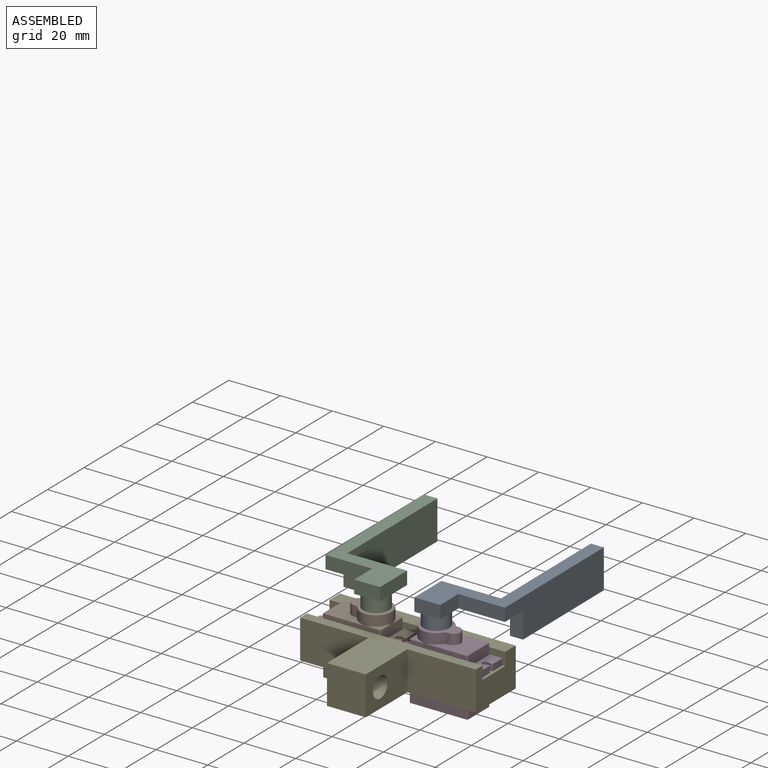
[diagram: assembled view]
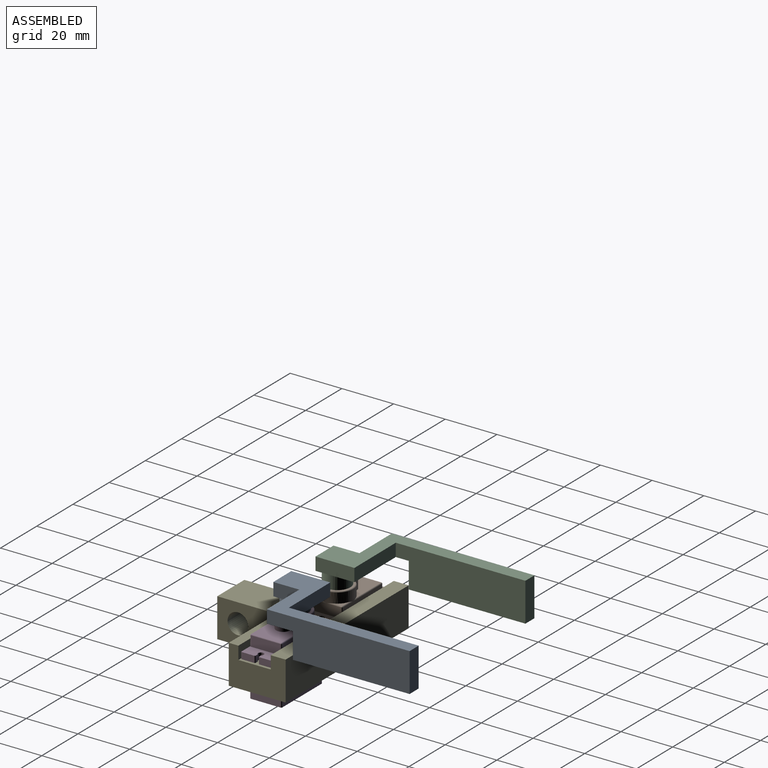
[diagram: assembled view, second angle]
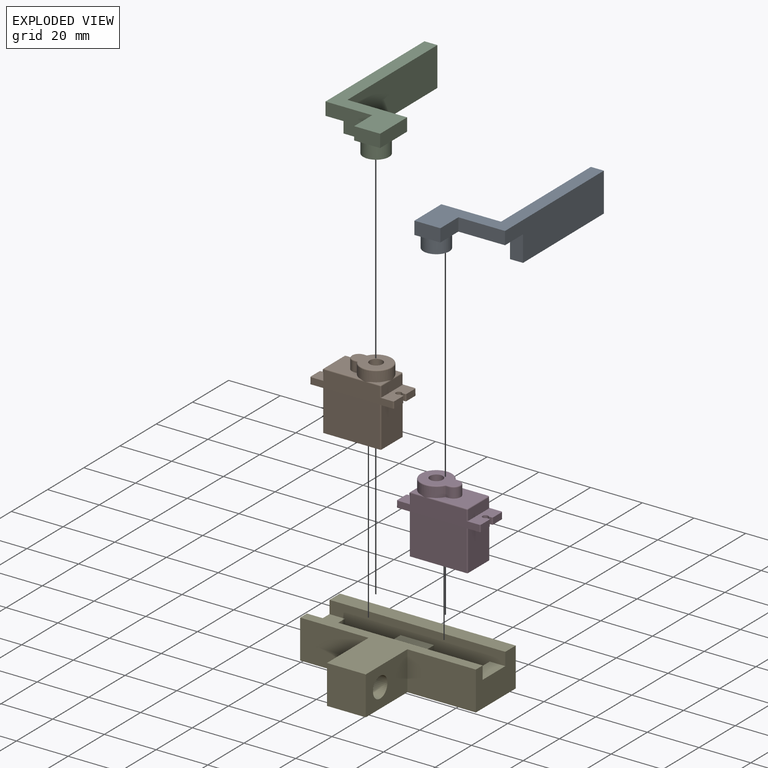
[diagram: exploded view]
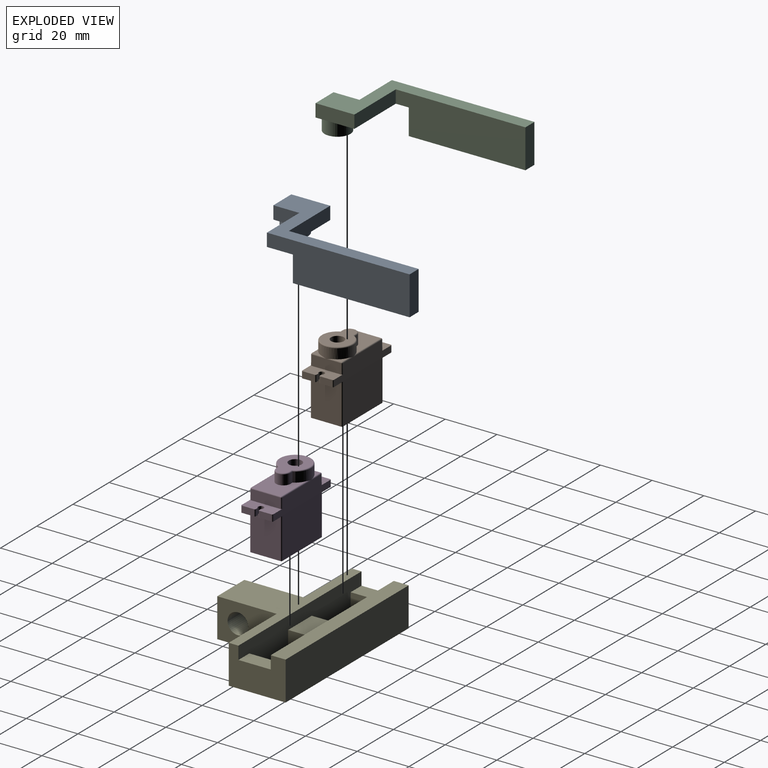
[diagram: exploded view, second angle]
ASSEMBLY  parts=5 mates=10
PART A: 18 faces, bbox 28x65x15 mm
  f0: plane 28x15mm, normal (0,0,-1), area 175.7mm2, adj f2,f3,f5,f6,f7,f9,f13,f16
  f1: plane 5x5mm, normal (0,0,-1), area 5.4mm2, adj f8,f9,f13
  f2: plane 18x5mm, normal (0,-1,0), area 90mm2, adj f0,f3,f9,f10
  f3: plane 55x15mm, normal (1,0,0), area 725mm2, adj f0,f2,f4,f10,f16,f17
  f4: plane 15x5mm, normal (0,1,0), area 75mm2, adj f3,f5,f10,f17
  f5: plane 50x15mm, normal (-1,0,0), area 700mm2, adj f0,f4,f6,f10,f16,f17
  f6: plane 23x5mm, normal (0,1,0), area 115mm2, adj f0,f5,f7,f10
  f7: plane 15x5mm, normal (-1,0,0), area 75mm2, adj f0,f6,f8,f10,f11
  f8: plane 10x5mm, normal (0,-1,0), area 50mm2, adj f1,f7,f9,f10,f11
  f9: plane 10x5mm, normal (1,0,0), area 50mm2, adj f0,f1,f2,f8,f10
  f10: plane 65x28mm, normal (0,0,1), area 490mm2, adj f2,f3,f4,f5,f6,f7,f8,f9
  f11: plane 5x5mm, normal (0,0,-1), area 5.4mm2, adj f7,f8,f13
  f12: cylinder r=4mm len=8mm, axis (0,0,1), area 125.7mm2, adj f14,f15
  f13: cylinder r=5mm len=10mm, axis (0,0,1), area 157.1mm2, adj f0,f1,f11,f14
  f14: plane 10x10mm, normal (0,0,-1), area 28.3mm2, adj f12,f13
  f15: plane 8x8mm, normal (0,0,-1), area 50.3mm2, adj f12
  f16: plane 10x5mm, normal (0,-1,0), area 50mm2, adj f0,f3,f5,f17
  f17: plane 45x5mm, normal (0,0,-1), area 225mm2, adj f3,f4,f5,f16
PART B: 64 faces, bbox 13.2x32.4x26.7 mm
  f0: plane 3.52x3.52mm, normal (0,0,1), area 4.4mm2, adj f4,f7,f57
  f1: plane 3.52x3.52mm, normal (0,0,1), area 4.4mm2, adj f5,f8,f57
  f2: plane 13.72x11.39mm, normal (0,0,1), area 107.7mm2, adj f3,f6,f47,f53,f54,f57,f58
  f3: cylinder r=0.4mm len=15.89mm, axis (0,1,0), area 9.3mm2, adj f2,f17,f45,f57
  f4: cylinder r=0.4mm len=5.69mm, axis (0,1,0), area 2.9mm2, adj f0,f17,f50,f57
  f5: cylinder r=0.4mm len=5.69mm, axis (0,1,0), area 2.9mm2, adj f1,f15,f51,f57
  f6: cylinder r=0.4mm len=15.89mm, axis (0,1,0), area 9.3mm2, adj f2,f15,f49,f57
  f7: cylinder r=0.4mm len=5.69mm, axis (-1,0,0), area 2.9mm2, adj f0,f16,f50,f57
  f8: cylinder r=0.4mm len=5.69mm, axis (-1,0,0), area 2.9mm2, adj f1,f16,f51,f57
  f9: plane 4.73x2.5mm, normal (0,1,0.01), area 11.8mm2, adj f11,f12,f32,f36
  f10: plane 4.73x2.5mm, normal (0,1,0.01), area 11.8mm2, adj f11,f12,f33,f37
  f11: plane 12.3x5.35mm, normal (0,0,-1), area 55.4mm2, adj f9,f10,f15,f17,f22,f29,f30,f31
  f12: plane 12.26x5.35mm, normal (0,0,1), area 55.2mm2, adj f9,f10,f15,f16,f17,f29,f30,f31
  f13: plane 4.73x2.5mm, normal (0,-1,0.01), area 11.8mm2, adj f14,f25,f34,f38
  f14: plane 12.26x5.35mm, normal (0,0,1), area 55.2mm2, adj f13,f15,f17,f18,f24,f26,f27,f28
  f15: plane 31.6x6.4mm, normal (1,0,0.01), area 163.4mm2, adj f5,f6,f11,f12,f14,f23,f25,f36
  f16: plane 11.46x3.9mm, normal (0,1,0.01), area 44.6mm2, adj f7,f8,f12,f48,f52
  f17: plane 31.6x6.4mm, normal (-1,0,0.01), area 163.4mm2, adj f3,f4,f11,f12,f14,f21,f25,f37
  f18: plane 11.46x3.9mm, normal (0,-1,0.01), area 44.6mm2, adj f14,f44,f46,f47
  f19: plane 22.5x12.3mm, normal (0,0,-1), area 276.6mm2, adj f20,f21,f22,f23,f40,f41,f42,f43
  f20: plane 15.7x11.5mm, normal (0,-1,0), area 180.5mm2, adj f19,f25,f42,f43
  f21: plane 21.7x15.7mm, normal (-1,0,0), area 340.7mm2, adj f17,f19,f41,f42
  f22: plane 15.7x11.5mm, normal (0,1,0), area 180.5mm2, adj f11,f19,f40,f41
  f23: plane 21.7x15.7mm, normal (1,0,0), area 340.7mm2, adj f15,f19,f40,f43
  f24: plane 4.73x2.5mm, normal (0,-1,0.01), area 11.8mm2, adj f14,f25,f35,f39
  f25: plane 12.3x5.35mm, normal (0,0,-1), area 55.4mm2, adj f13,f15,f17,f20,f24,f26,f27,f28
  f26: cylinder r=1.1mm len=2.5mm, axis (0,0,1), area 14mm2, adj f14,f25,f27,f28
  f27: plane 2.5x1.04mm, normal (1,0,0), area 2.6mm2, adj f14,f25,f26,f34
  f28: plane 2.5x1.04mm, normal (-1,0,0), area 2.6mm2, adj f14,f25,f26,f35
  f29: plane 2.5x1.04mm, normal (-1,0,0), area 2.6mm2, adj f11,f12,f31,f32
  f30: plane 2.5x1.04mm, normal (1,0,0), area 2.6mm2, adj f11,f12,f31,f33
  f31: cylinder r=1.1mm len=2.5mm, axis (0,0,1), area 14mm2, adj f11,f12,f29,f30
  f32: cylinder r=0.4mm len=2.51mm, axis (0,0.01,-1), area 1.6mm2, adj f9,f11,f12,f29
  f33: cylinder r=0.4mm len=2.51mm, axis (0,-0.01,1), area 1.6mm2, adj f10,f11,f12,f30
  f34: cylinder r=0.4mm len=2.51mm, axis (0,0.01,1), area 1.6mm2, adj f13,f14,f25,f27
  f35: cylinder r=0.4mm len=2.51mm, axis (0,-0.01,-1), area 1.6mm2, adj f14,f24,f25,f28
  f36: cylinder r=0.4mm len=2.5mm, axis (0.01,0.01,-1), area 1.6mm2, adj f9,f11,f12,f15
  f37: cylinder r=0.4mm len=2.5mm, axis (-0.01,0.01,-1), area 1.6mm2, adj f10,f11,f12,f17
  f38: cylinder r=0.4mm len=2.5mm, axis (-0.01,-0.01,-1), area 1.6mm2, adj f13,f14,f17,f25
  f39: cylinder r=0.4mm len=2.5mm, axis (0.01,-0.01,-1), area 1.6mm2, adj f14,f15,f24,f25
  f40: cylinder r=0.4mm len=15.7mm, axis (0,0,-1), area 9.9mm2, adj f11,f19,f22,f23
  f41: cylinder r=0.4mm len=15.7mm, axis (0,0,1), area 9.9mm2, adj f11,f19,f21,f22
  f42: cylinder r=0.4mm len=15.7mm, axis (0,0,-1), area 9.9mm2, adj f19,f20,f21,f25
  f43: cylinder r=0.4mm len=15.7mm, axis (0,0,1), area 9.9mm2, adj f19,f20,f23,f25
  f44: cylinder r=0.4mm len=3.91mm, axis (-0.01,-0.01,-1), area 2.5mm2, adj f14,f17,f18,f45
  f45: sphere r=0.4mm, area 0.2mm2, adj f3,f44,f47
  f46: cylinder r=0.4mm len=3.91mm, axis (0.01,-0.01,-1), area 2.5mm2, adj f14,f15,f18,f49
  f47: cylinder r=0.4mm len=11.39mm, axis (-1,0,0), area 7.1mm2, adj f2,f18,f45,f49
  f48: cylinder r=0.4mm len=3.91mm, axis (-0.01,0.01,-1), area 2.5mm2, adj f12,f16,f17,f50
  f49: sphere r=0.4mm, area 0.2mm2, adj f6,f46,f47
  f50: sphere r=0.4mm, area 0.2mm2, adj f4,f7,f48
  f51: sphere r=0.4mm, area 0.2mm2, adj f5,f8,f52
  f52: cylinder r=0.4mm len=3.91mm, axis (0.01,0.01,-1), area 2.5mm2, adj f12,f15,f16,f51
  f53: plane 3.8x1.22mm, normal (-1,0,0), area 4.6mm2, adj f2,f54,f57,f61
  f54: cylinder r=2.75mm len=5.5mm, axis (0,0,-1), area 32.8mm2, adj f2,f53,f58,f63
  f55: plane 14.7x11.39mm, normal (0,0,1), area 96.2mm2, adj f56,f60,f61,f62,f63
  f56: cylinder r=2.5mm len=5mm, axis (0,0,-1), area 66mm2, adj f55,f59
  f57: cylinder r=6.09mm len=12.19mm, axis (0,0,-1), area 125.9mm2, adj f0,f1,f2,f3,f4,f5,f6,f7
  f58: plane 3.8x1.22mm, normal (1,0,0), area 4.6mm2, adj f2,f54,f57,f62
  f59: plane 5x5mm, normal (0,0,1), area 19.6mm2, adj f56
  f60: torus R=5.69mm, axis (0,0,1), area 20.1mm2, adj f55,f57,f61,f62
  f61: cylinder r=0.4mm len=1.47mm, axis (0,1,0), area 0.8mm2, adj f53,f55,f60,f63
  f62: cylinder r=0.4mm len=1.47mm, axis (0,-1,0), area 0.8mm2, adj f55,f58,f60,f63
  f63: torus R=2.35mm, axis (0,0,1), area 5.1mm2, adj f54,f55,f61,f62
PART C: 18 faces, bbox 28x65x15 mm
  f0: plane 28x15mm, normal (0,0,-1), area 175.7mm2, adj f2,f3,f4,f6,f7,f8,f13,f16
  f1: plane 5x5mm, normal (0,0,-1), area 5.4mm2, adj f5,f6,f13
  f2: plane 55x15mm, normal (-1,0,0), area 725mm2, adj f0,f3,f9,f10,f16,f17
  f3: plane 18x5mm, normal (0,-1,0), area 90mm2, adj f0,f2,f4,f10
  f4: plane 10x5mm, normal (-1,0,0), area 50mm2, adj f0,f3,f5,f10,f11
  f5: plane 10x5mm, normal (0,-1,0), area 50mm2, adj f1,f4,f6,f10,f11
  f6: plane 15x5mm, normal (1,0,0), area 75mm2, adj f0,f1,f5,f7,f10
  f7: plane 23x5mm, normal (0,1,0), area 115mm2, adj f0,f6,f8,f10
  f8: plane 50x15mm, normal (1,0,0), area 700mm2, adj f0,f7,f9,f10,f16,f17
  f9: plane 15x5mm, normal (0,1,0), area 75mm2, adj f2,f8,f10,f17
  f10: plane 65x28mm, normal (0,0,1), area 490mm2, adj f2,f3,f4,f5,f6,f7,f8,f9
  f11: plane 5x5mm, normal (0,0,-1), area 5.4mm2, adj f4,f5,f13
  f12: cylinder r=4mm len=8mm, axis (0,0,1), area 125.7mm2, adj f14,f15
  f13: cylinder r=5mm len=10mm, axis (0,0,1), area 157.1mm2, adj f0,f1,f11,f14
  f14: plane 10x10mm, normal (0,0,-1), area 28.3mm2, adj f12,f13
  f15: plane 8x8mm, normal (0,0,-1), area 50.3mm2, adj f12
  f16: plane 10x5mm, normal (0,-1,0), area 50mm2, adj f0,f2,f8,f17
  f17: plane 45x5mm, normal (0,0,-1), area 225mm2, adj f2,f8,f9,f16
PART D: same geometry as B
PART E: 21 faces, bbox 68x45x15 mm
  f0: plane 12.5x10mm, normal (1,0,0), area 125mm2, adj f13,f14,f16,f18
  f1: plane 12.5x10mm, normal (-1,0,0), area 125mm2, adj f13,f14,f16,f20
  f2: plane 12.5x10mm, normal (1,0,0), area 125mm2, adj f13,f14,f16,f20
  f3: plane 12.5x10mm, normal (-1,0,0), area 125mm2, adj f13,f14,f16,f19
  f4: plane 68x5.75mm, normal (0,0,1), area 391mm2, adj f6,f7,f11,f13
  f5: plane 68x26.75mm, normal (0,0,1), area 600mm2, adj f6,f7,f8,f9,f10,f12,f14,f15
  f6: plane 22x15mm, normal (1,0,0), area 267.5mm2, adj f4,f5,f10,f11,f13,f14,f16,f19
  f7: plane 22x15mm, normal (-1,0,0), area 267.5mm2, adj f4,f5,f11,f12,f13,f14,f16,f18
  f8: plane 15x15mm, normal (0,-1,0), area 225mm2, adj f5,f9,f15,f16
  f9: plane 23x15mm, normal (1,0,0), area 294.7mm2, adj f5,f8,f10,f16,f17
  f10: plane 26.5x15mm, normal (0,-1,0), area 397.5mm2, adj f5,f6,f9,f16
  f11: plane 68x15mm, normal (0,1,0), area 1020mm2, adj f4,f6,f7,f16
  f12: plane 26.5x15mm, normal (0,-1,0), area 397.5mm2, adj f5,f7,f15,f16
  f13: plane 68x15mm, normal (0,-1,0), area 770mm2, adj f0,f1,f2,f3,f4,f6,f7,f16
  f14: plane 68x15mm, normal (0,1,0), area 770mm2, adj f0,f1,f2,f3,f5,f6,f7,f16
  f15: plane 23x15mm, normal (-1,0,0), area 294.7mm2, adj f5,f8,f12,f16,f17
  f16: plane 68x45mm, normal (0,0,-1), area 1303.5mm2, adj f0,f1,f2,f3,f6,f7,f8,f9
  f17: cylinder r=4mm len=15mm, axis (1,0,0), area 377mm2, adj f9,f15
  f18: plane 12.5x6mm, normal (0,0,1), area 75mm2, adj f0,f7,f13,f14
  f19: plane 12.5x6mm, normal (0,0,1), area 75mm2, adj f3,f6,f13,f14
  f20: plane 13x12.5mm, normal (0,0,1), area 162.5mm2, adj f1,f2,f13,f14
PLACE A rot(axis=(0,0,1),0.3deg) t=(-50.15,42.58,29.4)mm
PLACE B rot(axis=(0,0,-1),90deg) t=(-34.46,37.81,13.4)mm
PLACE C rot(axis=(0,0,1),0.2deg) t=(-52.38,42.71,29.4)mm
PLACE D rot(axis=(0,0,1),90deg) t=(-0.96,37.81,13.4)mm
PLACE E t=(-17.71,4.71,3.4)mm fixed
MATE planar B.f20 <-> E.f0  axis (-1,0,0) through (-45.71,37.81,5.55)mm
MATE cylindrical C.f12 <-> B.f56  axis (0,0,1) through (-29.36,37.81,24.4)mm
MATE planar D.f55 <-> A.f12  axis (0,0,1) through (-0.87,40.16,24.4)mm
MATE cylindrical A.f12 <-> D.f56  axis (0,0,1) through (-6.06,37.81,26.9)mm
MATE planar D.f11 <-> E.f19  axis (0,0,-1) through (-17.16,34.43,13.4)mm
MATE planar B.f25 <-> E.f18  axis (0,0,-1) through (-50.66,41.2,13.4)mm
MATE planar D.f20 <-> E.f3  axis (1,0,0) through (10.29,37.81,5.55)mm
MATE planar E.f13 <-> B.f21  axis (0,-1,0) through (-17.71,43.96,11.71)mm
MATE planar B.f55 <-> C.f12  axis (0,0,1) through (-30.38,37.81,24.4)mm
MATE planar E.f13 <-> D.f23  axis (0,-1,0) through (-17.71,43.96,11.71)mm
